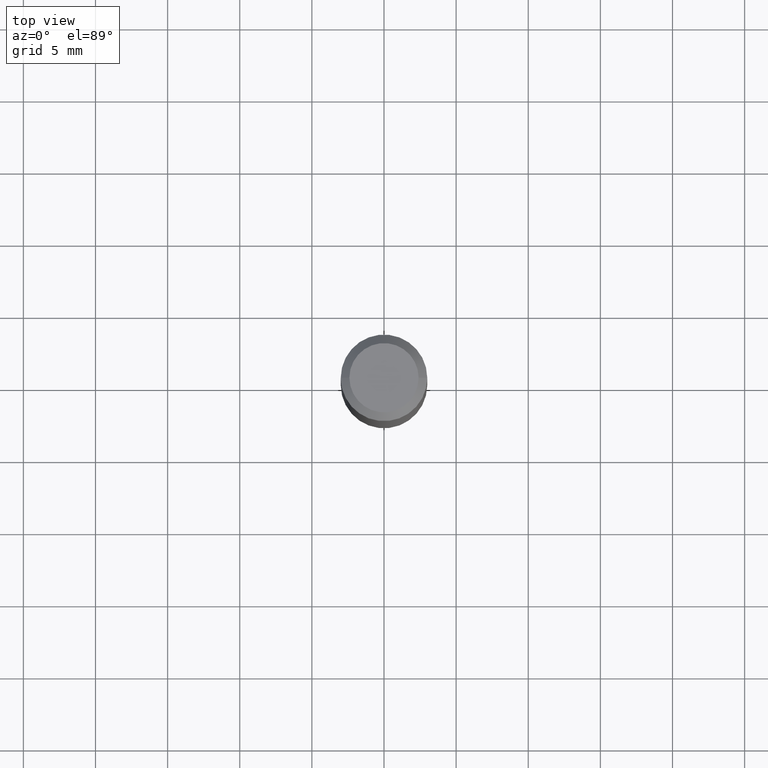
[diagram: clean part render]
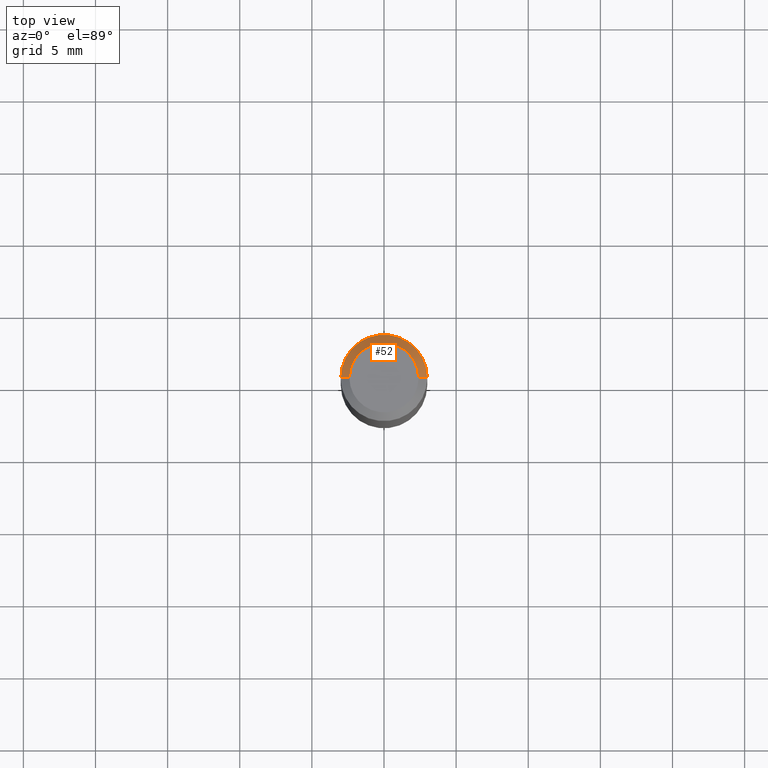
[diagram: same view with one face highlighted and labeled with its STEP entity id]
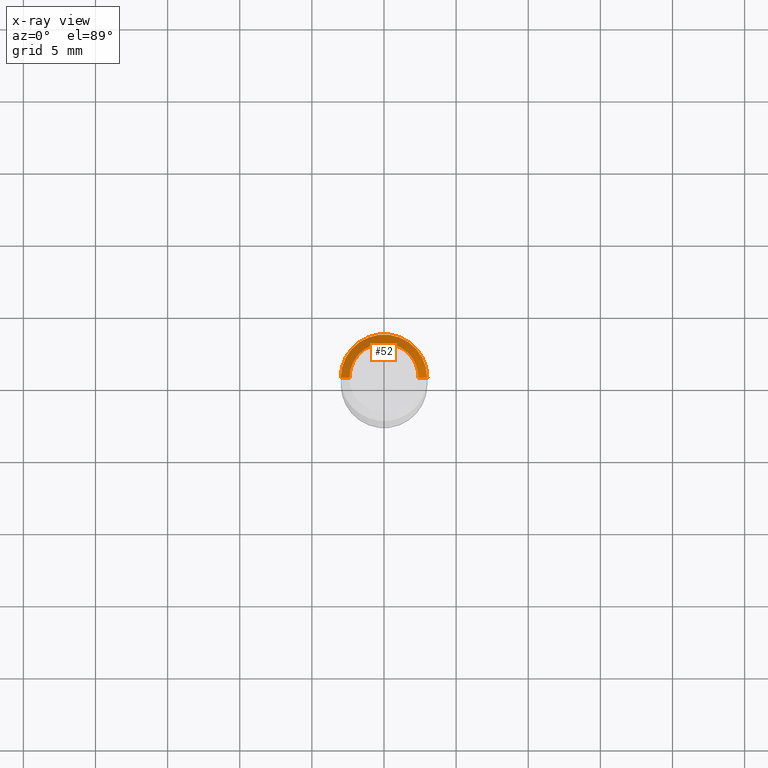
[diagram: x-ray of the same camera — body ghosted, the highlighted face saturated]
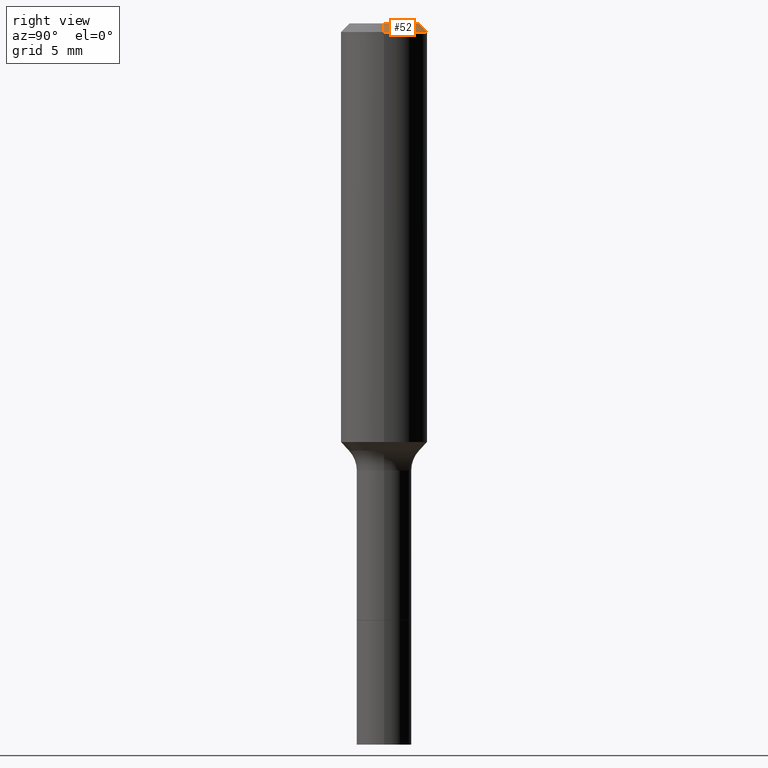
[diagram: same view with one face highlighted and labeled with its STEP entity id]
A machine part, top view. The second image highlights one B-rep face of the part: STEP entity #52.
The next image is the same camera in x-ray: the body ghosted, the highlighted face saturated — about 0% of this face is hidden behind the body in this view.
A second angle (right view) of the same face is appended — the face is thin or edge-on in the first view.
In plain terms, the highlighted conical surface has half-angle 45 deg.
Its self-contained STEP definition (entity closure, byte-faithful):
#36 = DIRECTION ( 'NONE',  ( -0.7071067811865460184, 2.468850131082241283E-15, -0.7071067811865490160 ) ) ;
#52 = ADVANCED_FACE ( 'NONE', ( #391 ), #200, .T. ) ;
#55 = DIRECTION ( 'NONE',  ( 0.7071067811865460184, -7.319954787623251312E-15, -0.7071067811865490160 ) ) ;
#70 = LINE ( 'NONE', #295, #271 ) ;
#82 = EDGE_CURVE ( 'NONE', #390, #275, #70, .T. ) ;
#96 = VERTEX_POINT ( 'NONE', #298 ) ;
#100 = CIRCLE ( 'NONE', #254, 0.1180999999999999966 ) ;
#136 = DIRECTION ( 'NONE',  ( 2.445468806185136597E-29, -3.491481338843145583E-15, -1.000000000000000000 ) ) ;
#141 = CARTESIAN_POINT ( 'NONE',  ( 7.545787641473140628E-46, -1.077338491108201769E-31, -3.085620075131671975E-17 ) ) ;
#165 = DIRECTION ( 'NONE',  ( -2.445468806185136597E-29, 3.491481338843145583E-15, 1.000000000000000000 ) ) ;
#168 = EDGE_LOOP ( 'NONE', ( #499, #193, #462, #257 ) ) ;
#193 = ORIENTED_EDGE ( 'NONE', *, *, #82, .T. ) ;
#200 = CONICAL_SURFACE ( 'NONE', #484, 0.1180999999999999966, 0.7853981633974461696 ) ;
#216 = DIRECTION ( 'NONE',  ( -2.445468806185136597E-29, 3.491481338843145583E-15, 1.000000000000000000 ) ) ;
#219 = EDGE_CURVE ( 'NONE', #390, #96, #458, .T. ) ;
#236 = LINE ( 'NONE', #306, #340 ) ;
#242 = CARTESIAN_POINT ( 'NONE',  ( -0.1180999999999999966, -1.196685704618475223E-15, -0.02362000000000014435 ) ) ;
#254 = AXIS2_PLACEMENT_3D ( 'NONE', #396, #165, #502 ) ;
#257 = ORIENTED_EDGE ( 'NONE', *, *, #284, .F. ) ;
#264 = DIRECTION ( 'NONE',  ( -1.000000000000000000, 6.982962677686266711E-15, 0.000000000000000000 ) ) ;
#271 = VECTOR ( 'NONE', #55, 39.37007874015748143 ) ;
#275 = VERTEX_POINT ( 'NONE', #422 ) ;
#284 = EDGE_CURVE ( 'NONE', #96, #296, #236, .T. ) ;
#295 = CARTESIAN_POINT ( 'NONE',  ( 0.1180999999999999966, -8.926936027602933910E-16, -0.02362000000000014435 ) ) ;
#296 = VERTEX_POINT ( 'NONE', #242 ) ;
#297 = DIRECTION ( 'NONE',  ( 1.000000000000000000, -6.982962677686267499E-15, 4.875432709231658792E-29 ) ) ;
#298 = CARTESIAN_POINT ( 'NONE',  ( -0.09447999999999998066, 7.009847083995354710E-16, -3.085620075132147757E-17 ) ) ;
#306 = CARTESIAN_POINT ( 'NONE',  ( -0.1180999999999999966, 7.422191030112725094E-16, -0.02362000000000014435 ) ) ;
#340 = VECTOR ( 'NONE', #36, 39.37007874015748143 ) ;
#364 = EDGE_CURVE ( 'NONE', #275, #296, #100, .T. ) ;
#390 = VERTEX_POINT ( 'NONE', #428 ) ;
#391 = FACE_OUTER_BOUND ( 'NONE', #168, .T. ) ;
#396 = CARTESIAN_POINT ( 'NONE',  ( 5.776197320209328408E-31, -8.246878922347560526E-17, -0.02362000000000014435 ) ) ;
#422 = CARTESIAN_POINT ( 'NONE',  ( 0.1180999999999999966, -9.071566814582237199E-16, -0.02362000000000014435 ) ) ;
#428 = CARTESIAN_POINT ( 'NONE',  ( 0.09447999999999998066, -7.704367267948738690E-16, -3.085620075131172158E-17 ) ) ;
#458 = CIRCLE ( 'NONE', #494, 0.09447999999999998066 ) ;
#462 = ORIENTED_EDGE ( 'NONE', *, *, #364, .T. ) ;
#484 = AXIS2_PLACEMENT_3D ( 'NONE', #493, #136, #264 ) ;
#493 = CARTESIAN_POINT ( 'NONE',  ( 5.776197320209328408E-31, -8.246878922347560526E-17, -0.02362000000000014435 ) ) ;
#494 = AXIS2_PLACEMENT_3D ( 'NONE', #141, #216, #297 ) ;
#499 = ORIENTED_EDGE ( 'NONE', *, *, #219, .F. ) ;
#502 = DIRECTION ( 'NONE',  ( 1.000000000000000000, -6.982962677686266711E-15, 0.000000000000000000 ) ) ;